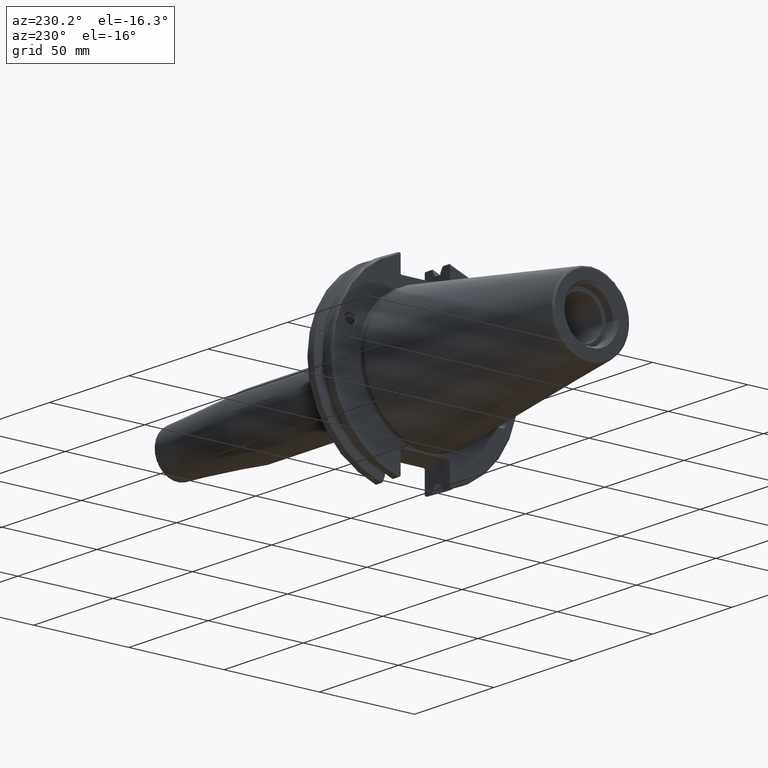
[diagram: clean part render]
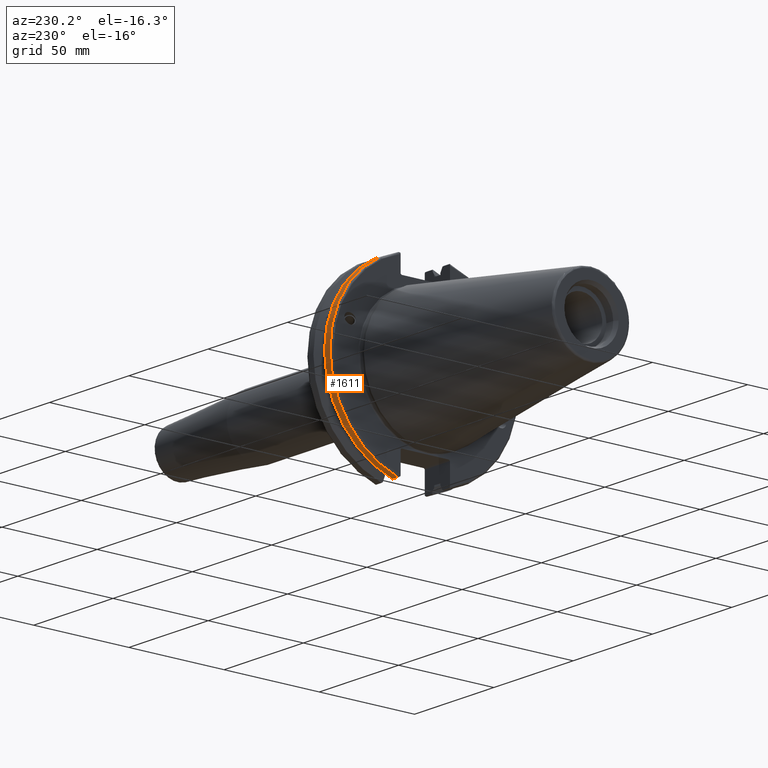
[diagram: same view with one face highlighted and labeled with its STEP entity id]
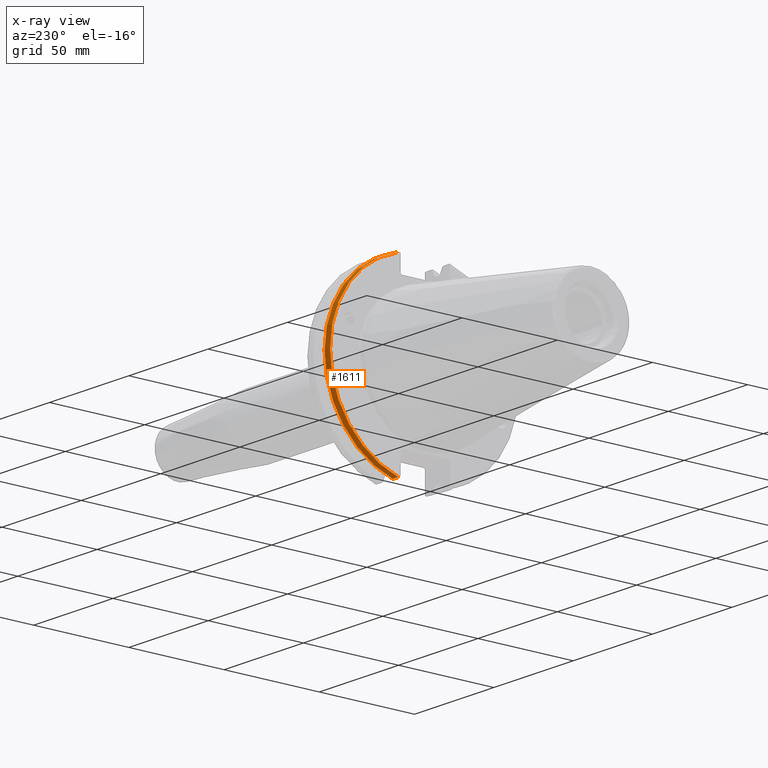
[diagram: x-ray of the same camera — body ghosted, the highlighted face saturated]
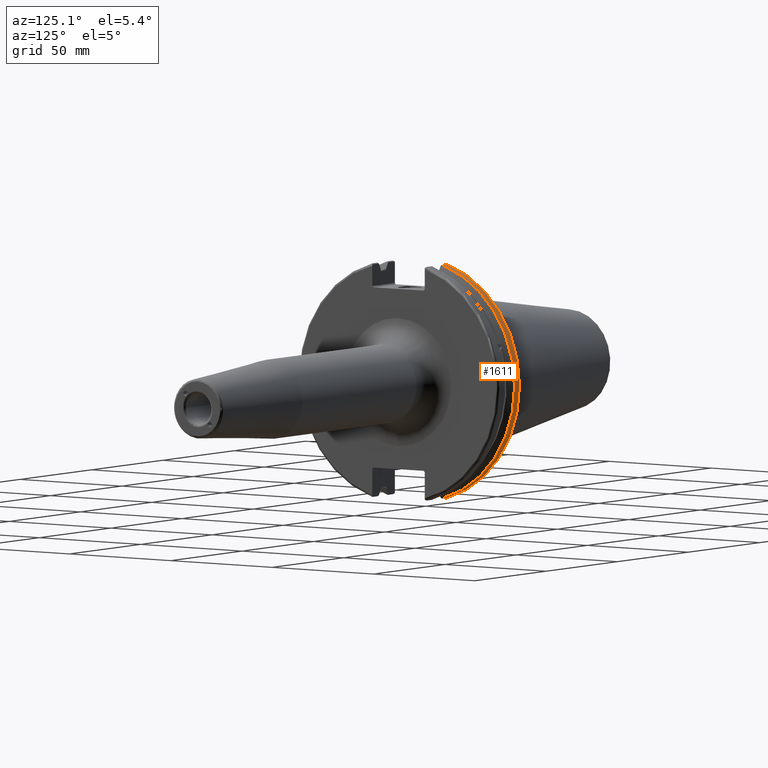
[diagram: same view with one face highlighted and labeled with its STEP entity id]
A machine part, auxiliary view. The second image highlights one B-rep face of the part: STEP entity #1611.
The next image is the same camera in x-ray: the body ghosted, the highlighted face saturated — about 0% of this face is hidden behind the body in this view.
A second angle (auxiliary view) of the same face is appended — the face is thin or edge-on in the first view.
In plain terms, the highlighted cylindrical surface (partial cylindrical patch) has radius 49.2125 mm, axis along (1, 0, 0).
Its self-contained STEP definition (entity closure, byte-faithful):
#162=LINE('',#3147,#260);
#177=LINE('',#3200,#275);
#260=VECTOR('',#2161,10.);
#275=VECTOR('',#2220,10.);
#306=CYLINDRICAL_SURFACE('',#1800,49.2125);
#450=FACE_OUTER_BOUND('',#562,.T.);
#562=EDGE_LOOP('',(#1455,#1456,#1457,#1458));
#621=CIRCLE('',#1731,49.2125);
#642=CIRCLE('',#1776,49.2125);
#748=VERTEX_POINT('',#2872);
#749=VERTEX_POINT('',#2876);
#801=VERTEX_POINT('',#3121);
#802=VERTEX_POINT('',#3130);
#933=EDGE_CURVE('',#748,#749,#621,.T.);
#1011=EDGE_CURVE('',#801,#802,#642,.T.);
#1014=EDGE_CURVE('',#802,#748,#162,.T.);
#1038=EDGE_CURVE('',#749,#801,#177,.T.);
#1455=ORIENTED_EDGE('',*,*,#1011,.F.);
#1456=ORIENTED_EDGE('',*,*,#1038,.F.);
#1457=ORIENTED_EDGE('',*,*,#933,.F.);
#1458=ORIENTED_EDGE('',*,*,#1014,.F.);
#1611=ADVANCED_FACE('',(#450),#306,.T.);
#1731=AXIS2_PLACEMENT_3D('',#2877,#2033,#2034);
#1776=AXIS2_PLACEMENT_3D('',#3131,#2157,#2158);
#1800=AXIS2_PLACEMENT_3D('',#3201,#2221,#2222);
#2033=DIRECTION('center_axis',(1.,0.,0.));
#2034=DIRECTION('ref_axis',(0.,0.,-1.));
#2157=DIRECTION('center_axis',(-1.,0.,0.));
#2158=DIRECTION('ref_axis',(0.,1.,-6.12323399573677E-17));
#2161=DIRECTION('',(1.,0.,0.));
#2220=DIRECTION('',(-1.,0.,0.));
#2221=DIRECTION('center_axis',(1.,0.,0.));
#2222=DIRECTION('ref_axis',(0.,1.,0.));
#2872=CARTESIAN_POINT('',(7.60799096595127,13.4317035994433,-47.3440544806494));
#2876=CARTESIAN_POINT('',(7.60799096595127,13.4317035994433,47.3440544806494));
#2877=CARTESIAN_POINT('Origin',(7.60799096595127,0.,0.));
#3121=CARTESIAN_POINT('',(4.175,13.4317035994433,47.3440544806494));
#3130=CARTESIAN_POINT('',(4.175,13.4317035994433,-47.3440544806494));
#3131=CARTESIAN_POINT('Origin',(4.175,0.,0.));
#3147=CARTESIAN_POINT('',(5.39149548297563,13.4317035994433,-47.3440544806494));
#3200=CARTESIAN_POINT('',(5.39149548297563,13.4317035994433,47.3440544806494));
#3201=CARTESIAN_POINT('Origin',(5.39149548297563,0.,0.));